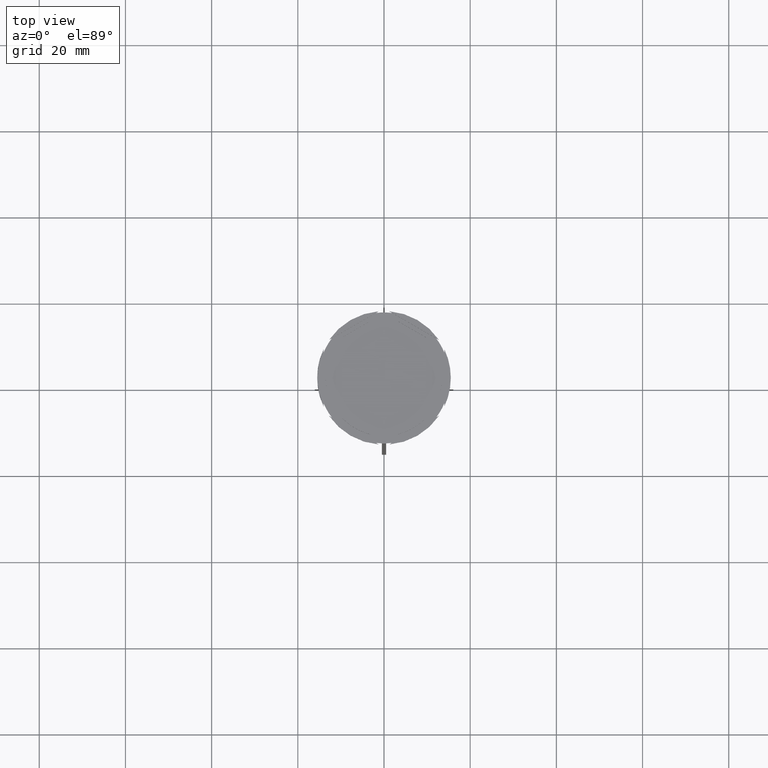
[diagram: clean part render]
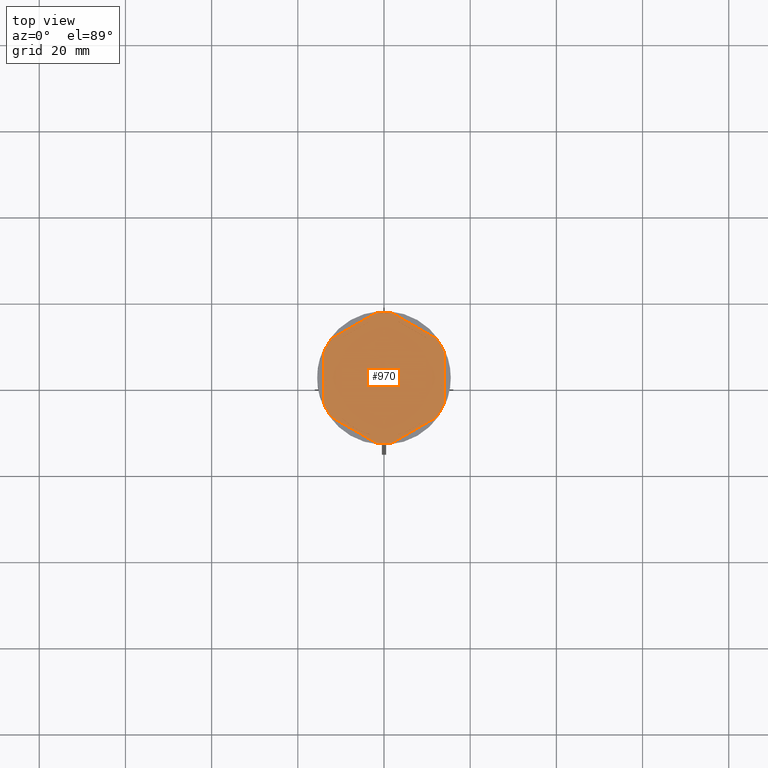
[diagram: same view with one face highlighted and labeled with its STEP entity id]
A machine part, top view. The second image highlights one B-rep face of the part: STEP entity #970.
In plain terms, the highlighted planar face has unit normal (0, 0, 1).
Its self-contained STEP definition (entity closure, byte-faithful):
#29 = EDGE_LOOP ( 'NONE', ( #492, #1847, #1284, #129, #726, #205, #2705, #2769, #2357, #2422, #1553, #802 ) ) ;
#52 = VECTOR ( 'NONE', #834, 1000.000000000000000 ) ;
#57 = FACE_OUTER_BOUND ( 'NONE', #29, .T. ) ;
#71 = FACE_BOUND ( 'NONE', #1508, .T. ) ;
#96 = CARTESIAN_POINT ( 'NONE',  ( -13.00000000000000178, 7.505553499465134060, -1.000000000000000888 ) ) ;
#100 = CARTESIAN_POINT ( 'NONE',  ( 0.000000000000000000, 16.16580753730952225, -1.000000000000000000 ) ) ;
#105 = CARTESIAN_POINT ( 'NONE',  ( -14.00000000000000178, -8.082903768654762899, -1.000000000000000000 ) ) ;
#106 = AXIS2_PLACEMENT_3D ( 'NONE', #1413, #1191, #1862 ) ;
#129 = ORIENTED_EDGE ( 'NONE', *, *, #1136, .F. ) ;
#148 = VECTOR ( 'NONE', #1573, 1000.000000000000000 ) ;
#155 = CARTESIAN_POINT ( 'NONE',  ( 9.652380053229610013, 9.438302776877588229, -1.000000000000000888 ) ) ;
#196 = CARTESIAN_POINT ( 'NONE',  ( -9.652380053229617118, -9.438302776877577571, -1.000000000000000888 ) ) ;
#205 = ORIENTED_EDGE ( 'NONE', *, *, #541, .F. ) ;
#218 = CARTESIAN_POINT ( 'NONE',  ( 0.000000000000000000, 0.000000000000000000, -1.000000000000000000 ) ) ;
#221 = CARTESIAN_POINT ( 'NONE',  ( 12.12640224719051574, 9.164625935592399131, -1.000000000000000000 ) ) ;
#225 = CARTESIAN_POINT ( 'NONE',  ( 0.000000000000000000, 0.000000000000000000, -1.000000000000000000 ) ) ;
#228 = VECTOR ( 'NONE', #254, 1000.000000000000000 ) ;
#239 = VECTOR ( 'NONE', #2760, 1000.000000000000114 ) ;
#254 = DIRECTION ( 'NONE',  ( 0.000000000000000000, 1.000000000000000000, 0.000000000000000000 ) ) ;
#279 = CIRCLE ( 'NONE', #2664, 13.50000000000000000 ) ;
#287 = CIRCLE ( 'NONE', #1922, 15.19999999999999929 ) ;
#288 = CARTESIAN_POINT ( 'NONE',  ( -12.12640224719051751, 9.164625935592393802, -1.000000000000000000 ) ) ;
#293 = ORIENTED_EDGE ( 'NONE', *, *, #1335, .F. ) ;
#301 = EDGE_CURVE ( 'NONE', #2173, #1148, #1069, .T. ) ;
#316 = DIRECTION ( 'NONE',  ( -0.000000000000000000, -0.000000000000000000, -1.000000000000000000 ) ) ;
#329 = ORIENTED_EDGE ( 'NONE', *, *, #988, .F. ) ;
#336 = DIRECTION ( 'NONE',  ( 0.8660254037844385966, 0.5000000000000000000, 0.000000000000000000 ) ) ;
#370 = AXIS2_PLACEMENT_3D ( 'NONE', #812, #1493, #2027 ) ;
#373 = VERTEX_POINT ( 'NONE', #876 ) ;
#380 = AXIS2_PLACEMENT_3D ( 'NONE', #1511, #2568, #1478 ) ;
#405 = VERTEX_POINT ( 'NONE', #700 ) ;
#414 = CARTESIAN_POINT ( 'NONE',  ( 9.652380053229613566, -9.438302776877582900, -1.000000000000000888 ) ) ;
#425 = VECTOR ( 'NONE', #457, 1000.000000000000000 ) ;
#435 = CARTESIAN_POINT ( 'NONE',  ( -12.12640224719051218, -9.164625935592404460, -1.000000000000000000 ) ) ;
#449 = EDGE_CURVE ( 'NONE', #731, #1148, #776, .T. ) ;
#457 = DIRECTION ( 'NONE',  ( -0.8660254037844385966, 0.5000000000000001110, 0.000000000000000000 ) ) ;
#466 = VECTOR ( 'NONE', #994, 1000.000000000000114 ) ;
#484 = ORIENTED_EDGE ( 'NONE', *, *, #2343, .F. ) ;
#492 = ORIENTED_EDGE ( 'NONE', *, *, #2659, .T. ) ;
#496 = EDGE_CURVE ( 'NONE', #2173, #581, #2506, .T. ) ;
#498 = CARTESIAN_POINT ( 'NONE',  ( 14.00000000000000000, -5.919459434779497542, -1.000000000000000000 ) ) ;
#506 = CARTESIAN_POINT ( 'NONE',  ( -13.00000000000000178, 3.640054944640251033, -1.000000000000000888 ) ) ;
#524 = EDGE_CURVE ( 'NONE', #1975, #2458, #279, .T. ) ;
#540 = VERTEX_POINT ( 'NONE', #506 ) ;
#541 = EDGE_CURVE ( 'NONE', #1102, #957, #1962, .T. ) ;
#551 = DIRECTION ( 'NONE',  ( 0.000000000000000000, 0.000000000000000000, 1.000000000000000000 ) ) ;
#555 = AXIS2_PLACEMENT_3D ( 'NONE', #225, #2018, #1117 ) ;
#562 = CIRCLE ( 'NONE', #1025, 13.50000000000000000 ) ;
#581 = VERTEX_POINT ( 'NONE', #1467 ) ;
#613 = ORIENTED_EDGE ( 'NONE', *, *, #1296, .F. ) ;
#636 = ORIENTED_EDGE ( 'NONE', *, *, #524, .F. ) ;
#646 = CARTESIAN_POINT ( 'NONE',  ( 13.00000000000000178, 3.640054944640248369, -1.000000000000000888 ) ) ;
#651 = CARTESIAN_POINT ( 'NONE',  ( -13.00000000000000178, -7.505553499465134060, -1.000000000000000888 ) ) ;
#693 = DIRECTION ( 'NONE',  ( 0.8660254037844385966, 0.5000000000000001110, -0.000000000000000000 ) ) ;
#700 = CARTESIAN_POINT ( 'NONE',  ( -13.00000000000000178, -3.640054944640251033, -1.000000000000000888 ) ) ;
#704 = AXIS2_PLACEMENT_3D ( 'NONE', #1180, #2076, #1851 ) ;
#717 = VERTEX_POINT ( 'NONE', #221 ) ;
#726 = ORIENTED_EDGE ( 'NONE', *, *, #953, .T. ) ;
#731 = VERTEX_POINT ( 'NONE', #435 ) ;
#738 = CARTESIAN_POINT ( 'NONE',  ( 14.00000000000000000, 5.919459434779493989, -1.000000000000000000 ) ) ;
#754 = DIRECTION ( 'NONE',  ( 0.000000000000000000, 0.000000000000000000, 1.000000000000000000 ) ) ;
#776 = LINE ( 'NONE', #105, #466 ) ;
#786 = EDGE_CURVE ( 'NONE', #1699, #1784, #2263, .T. ) ;
#792 = DIRECTION ( 'NONE',  ( 1.073081856240827950E-16, 1.000000000000000000, 0.000000000000000000 ) ) ;
#801 = AXIS2_PLACEMENT_3D ( 'NONE', #1510, #2437, #2216 ) ;
#802 = ORIENTED_EDGE ( 'NONE', *, *, #2293, .F. ) ;
#812 = CARTESIAN_POINT ( 'NONE',  ( 0.000000000000000000, 0.000000000000000000, -1.000000000000000000 ) ) ;
#834 = DIRECTION ( 'NONE',  ( -0.8660254037844387076, -0.4999999999999999445, 0.000000000000000000 ) ) ;
#865 = CARTESIAN_POINT ( 'NONE',  ( 0.000000000000000000, 0.000000000000000000, -1.000000000000000000 ) ) ;
#876 = CARTESIAN_POINT ( 'NONE',  ( -3.347619946770386434, 13.07835772151782905, -1.000000000000000888 ) ) ;
#882 = LINE ( 'NONE', #96, #228 ) ;
#912 = VERTEX_POINT ( 'NONE', #1412 ) ;
#953 = EDGE_CURVE ( 'NONE', #2157, #957, #1380, .T. ) ;
#957 = VERTEX_POINT ( 'NONE', #288 ) ;
#970 = ADVANCED_FACE ( 'NONE', ( #991, #71, #1144, #1649, #2054, #2074, #57 ), #1848, .T. ) ;
#976 = CARTESIAN_POINT ( 'NONE',  ( 0.000000000000000000, 0.000000000000000000, -1.000000000000000000 ) ) ;
#988 = EDGE_CURVE ( 'NONE', #2458, #1975, #1054, .T. ) ;
#991 = FACE_BOUND ( 'NONE', #1571, .T. ) ;
#994 = DIRECTION ( 'NONE',  ( 0.8660254037844388186, -0.4999999999999997780, 0.000000000000000000 ) ) ;
#1025 = AXIS2_PLACEMENT_3D ( 'NONE', #2589, #2094, #1909 ) ;
#1026 = DIRECTION ( 'NONE',  ( -0.8660254037844387076, 0.4999999999999997780, 0.000000000000000000 ) ) ;
#1046 = ORIENTED_EDGE ( 'NONE', *, *, #2469, .F. ) ;
#1054 = LINE ( 'NONE', #2375, #52 ) ;
#1069 = CIRCLE ( 'NONE', #555, 15.19999999999999929 ) ;
#1099 = ORIENTED_EDGE ( 'NONE', *, *, #1130, .F. ) ;
#1102 = VERTEX_POINT ( 'NONE', #1215 ) ;
#1117 = DIRECTION ( 'NONE',  ( 1.000000000000000000, 0.000000000000000000, 0.000000000000000000 ) ) ;
#1130 = EDGE_CURVE ( 'NONE', #373, #1696, #2538, .T. ) ;
#1135 = VERTEX_POINT ( 'NONE', #2420 ) ;
#1136 = EDGE_CURVE ( 'NONE', #2157, #912, #287, .T. ) ;
#1144 = FACE_BOUND ( 'NONE', #1466, .T. ) ;
#1148 = VERTEX_POINT ( 'NONE', #1800 ) ;
#1180 = CARTESIAN_POINT ( 'NONE',  ( 0.000000000000000000, 0.000000000000000000, -1.000000000000000000 ) ) ;
#1191 = DIRECTION ( 'NONE',  ( -0.000000000000000000, -0.000000000000000000, -1.000000000000000000 ) ) ;
#1197 = VERTEX_POINT ( 'NONE', #196 ) ;
#1199 = DIRECTION ( 'NONE',  ( 1.000000000000000000, -9.769962616701377556E-15, 0.000000000000000000 ) ) ;
#1211 = VECTOR ( 'NONE', #1026, 1000.000000000000114 ) ;
#1215 = CARTESIAN_POINT ( 'NONE',  ( -14.00000000000000178, 5.919459434779493989, -1.000000000000000000 ) ) ;
#1226 = ORIENTED_EDGE ( 'NONE', *, *, #1910, .F. ) ;
#1253 = VECTOR ( 'NONE', #336, 1000.000000000000227 ) ;
#1260 = CIRCLE ( 'NONE', #1486, 13.50000000000000000 ) ;
#1263 = CARTESIAN_POINT ( 'NONE',  ( 3.347619946770387322, -13.07835772151783083, -1.000000000000000888 ) ) ;
#1269 = EDGE_CURVE ( 'NONE', #1784, #1699, #1682, .T. ) ;
#1274 = CARTESIAN_POINT ( 'NONE',  ( 14.00000000000000178, 8.082903768654762899, -1.000000000000000000 ) ) ;
#1284 = ORIENTED_EDGE ( 'NONE', *, *, #2310, .T. ) ;
#1296 = EDGE_CURVE ( 'NONE', #405, #540, #882, .T. ) ;
#1310 = CIRCLE ( 'NONE', #380, 13.50000000000000000 ) ;
#1314 = VERTEX_POINT ( 'NONE', #2709 ) ;
#1330 = EDGE_CURVE ( 'NONE', #2674, #1314, #1260, .T. ) ;
#1331 = VERTEX_POINT ( 'NONE', #1365 ) ;
#1335 = EDGE_CURVE ( 'NONE', #1696, #373, #1388, .T. ) ;
#1337 = VERTEX_POINT ( 'NONE', #738 ) ;
#1359 = CARTESIAN_POINT ( 'NONE',  ( 13.00000000000000178, -3.640054944640254142, -1.000000000000000888 ) ) ;
#1365 = CARTESIAN_POINT ( 'NONE',  ( -14.00000000000000178, -5.919459434779493989, -1.000000000000000000 ) ) ;
#1377 = CARTESIAN_POINT ( 'NONE',  ( -3.347619946770386434, -13.07835772151782905, -1.000000000000000888 ) ) ;
#1380 = LINE ( 'NONE', #100, #239 ) ;
#1381 = CARTESIAN_POINT ( 'NONE',  ( -1.873597752809482486, 15.08408537037188957, -1.000000000000000000 ) ) ;
#1388 = LINE ( 'NONE', #2050, #2064 ) ;
#1394 = CARTESIAN_POINT ( 'NONE',  ( 1.873597752809482486, -15.08408537037188779, -1.000000000000000000 ) ) ;
#1412 = CARTESIAN_POINT ( 'NONE',  ( 1.873597752809481598, 15.08408537037189134, -1.000000000000000000 ) ) ;
#1413 = CARTESIAN_POINT ( 'NONE',  ( 0.000000000000000000, 0.000000000000000000, -1.000000000000000000 ) ) ;
#1425 = CARTESIAN_POINT ( 'NONE',  ( 0.000000000000000000, 0.000000000000000000, -1.000000000000000000 ) ) ;
#1466 = EDGE_LOOP ( 'NONE', ( #636, #329 ) ) ;
#1467 = CARTESIAN_POINT ( 'NONE',  ( 12.12640224719051751, -9.164625935592392025, -1.000000000000000000 ) ) ;
#1478 = DIRECTION ( 'NONE',  ( 1.000000000000000000, 0.000000000000000000, 0.000000000000000000 ) ) ;
#1486 = AXIS2_PLACEMENT_3D ( 'NONE', #1601, #754, #2741 ) ;
#1493 = DIRECTION ( 'NONE',  ( 0.000000000000000000, 0.000000000000000000, 1.000000000000000000 ) ) ;
#1495 = LINE ( 'NONE', #1274, #1211 ) ;
#1508 = EDGE_LOOP ( 'NONE', ( #2265, #2336 ) ) ;
#1510 = CARTESIAN_POINT ( 'NONE',  ( 0.000000000000000000, 0.000000000000000000, -1.000000000000000000 ) ) ;
#1511 = CARTESIAN_POINT ( 'NONE',  ( 0.000000000000000000, 0.000000000000000000, -1.000000000000000000 ) ) ;
#1512 = EDGE_LOOP ( 'NONE', ( #2237, #613, #484 ) ) ;
#1553 = ORIENTED_EDGE ( 'NONE', *, *, #496, .T. ) ;
#1571 = EDGE_LOOP ( 'NONE', ( #1948, #2639 ) ) ;
#1573 = DIRECTION ( 'NONE',  ( -2.311253228826398661E-16, -1.000000000000000000, 0.000000000000000000 ) ) ;
#1601 = CARTESIAN_POINT ( 'NONE',  ( 0.000000000000000000, 0.000000000000000000, -1.000000000000000000 ) ) ;
#1649 = FACE_BOUND ( 'NONE', #2542, .T. ) ;
#1661 = CARTESIAN_POINT ( 'NONE',  ( 1.740335835716699810E-15, -16.16580753730952225, -1.000000000000000000 ) ) ;
#1682 = CIRCLE ( 'NONE', #801, 13.50000000000000000 ) ;
#1696 = VERTEX_POINT ( 'NONE', #1749 ) ;
#1699 = VERTEX_POINT ( 'NONE', #646 ) ;
#1749 = CARTESIAN_POINT ( 'NONE',  ( -9.652380053229617118, 9.438302776877577571, -1.000000000000000888 ) ) ;
#1766 = DIRECTION ( 'NONE',  ( 1.000000000000000000, -5.329070518200752183E-15, 0.000000000000000000 ) ) ;
#1767 = LINE ( 'NONE', #651, #425 ) ;
#1770 = VERTEX_POINT ( 'NONE', #498 ) ;
#1784 = VERTEX_POINT ( 'NONE', #1359 ) ;
#1800 = CARTESIAN_POINT ( 'NONE',  ( -1.873597752809485151, -15.08408537037189312, -1.000000000000000000 ) ) ;
#1827 = AXIS2_PLACEMENT_3D ( 'NONE', #2160, #1966, #2586 ) ;
#1829 = AXIS2_PLACEMENT_3D ( 'NONE', #865, #2418, #2448 ) ;
#1847 = ORIENTED_EDGE ( 'NONE', *, *, #2594, .F. ) ;
#1848 = PLANE ( 'NONE',  #2848 ) ;
#1851 = DIRECTION ( 'NONE',  ( 1.000000000000000000, 0.000000000000000000, 0.000000000000000000 ) ) ;
#1859 = DIRECTION ( 'NONE',  ( 0.8660254037844387076, -0.5000000000000001110, 0.000000000000000000 ) ) ;
#1862 = DIRECTION ( 'NONE',  ( 1.000000000000000000, 0.000000000000000000, 0.000000000000000000 ) ) ;
#1878 = AXIS2_PLACEMENT_3D ( 'NONE', #2323, #316, #1199 ) ;
#1879 = LINE ( 'NONE', #2501, #1921 ) ;
#1890 = CARTESIAN_POINT ( 'NONE',  ( 14.00000000000000000, -8.082903768654761123, -1.000000000000000000 ) ) ;
#1909 = DIRECTION ( 'NONE',  ( 1.000000000000000000, 0.000000000000000000, 0.000000000000000000 ) ) ;
#1910 = EDGE_CURVE ( 'NONE', #1197, #2560, #562, .T. ) ;
#1921 = VECTOR ( 'NONE', #1859, 999.9999999999998863 ) ;
#1922 = AXIS2_PLACEMENT_3D ( 'NONE', #218, #2203, #1766 ) ;
#1935 = DIRECTION ( 'NONE',  ( 0.000000000000000000, -1.000000000000000000, 0.000000000000000000 ) ) ;
#1948 = ORIENTED_EDGE ( 'NONE', *, *, #1330, .F. ) ;
#1962 = CIRCLE ( 'NONE', #704, 15.19999999999999929 ) ;
#1966 = DIRECTION ( 'NONE',  ( -0.000000000000000000, -0.000000000000000000, -1.000000000000000000 ) ) ;
#1975 = VERTEX_POINT ( 'NONE', #1263 ) ;
#2014 = CARTESIAN_POINT ( 'NONE',  ( 13.00000000000000000, -7.505553499465137612, -1.000000000000000888 ) ) ;
#2018 = DIRECTION ( 'NONE',  ( -0.000000000000000000, -0.000000000000000000, -1.000000000000000000 ) ) ;
#2019 = VECTOR ( 'NONE', #1935, 1000.000000000000000 ) ;
#2027 = DIRECTION ( 'NONE',  ( 1.000000000000000000, 0.000000000000000000, 0.000000000000000000 ) ) ;
#2050 = CARTESIAN_POINT ( 'NONE',  ( 0.000000000000000000, 15.01110699893027167, -1.000000000000000888 ) ) ;
#2053 = EDGE_LOOP ( 'NONE', ( #1099, #293 ) ) ;
#2054 = FACE_BOUND ( 'NONE', #1512, .T. ) ;
#2064 = VECTOR ( 'NONE', #693, 1000.000000000000000 ) ;
#2074 = FACE_BOUND ( 'NONE', #2053, .T. ) ;
#2076 = DIRECTION ( 'NONE',  ( -0.000000000000000000, -0.000000000000000000, -1.000000000000000000 ) ) ;
#2094 = DIRECTION ( 'NONE',  ( 0.000000000000000000, 0.000000000000000000, 1.000000000000000000 ) ) ;
#2104 = DIRECTION ( 'NONE',  ( 1.000000000000000000, 0.000000000000000000, 0.000000000000000000 ) ) ;
#2110 = CIRCLE ( 'NONE', #1827, 15.19999999999999929 ) ;
#2157 = VERTEX_POINT ( 'NONE', #1381 ) ;
#2158 = CIRCLE ( 'NONE', #1878, 15.19999999999999929 ) ;
#2160 = CARTESIAN_POINT ( 'NONE',  ( 0.000000000000000000, 0.000000000000000000, -1.000000000000000000 ) ) ;
#2171 = DIRECTION ( 'NONE',  ( 0.000000000000000000, 0.000000000000000000, 1.000000000000000000 ) ) ;
#2173 = VERTEX_POINT ( 'NONE', #1394 ) ;
#2203 = DIRECTION ( 'NONE',  ( -0.000000000000000000, -0.000000000000000000, -1.000000000000000000 ) ) ;
#2216 = DIRECTION ( 'NONE',  ( 1.000000000000000000, 0.000000000000000000, 0.000000000000000000 ) ) ;
#2219 = EDGE_CURVE ( 'NONE', #731, #1331, #2809, .T. ) ;
#2237 = ORIENTED_EDGE ( 'NONE', *, *, #2853, .F. ) ;
#2263 = LINE ( 'NONE', #2014, #148 ) ;
#2265 = ORIENTED_EDGE ( 'NONE', *, *, #1269, .F. ) ;
#2293 = EDGE_CURVE ( 'NONE', #1770, #581, #2110, .T. ) ;
#2303 = CIRCLE ( 'NONE', #1829, 13.50000000000000000 ) ;
#2310 = EDGE_CURVE ( 'NONE', #717, #912, #1495, .T. ) ;
#2323 = CARTESIAN_POINT ( 'NONE',  ( 0.000000000000000000, 0.000000000000000000, -1.000000000000000000 ) ) ;
#2336 = ORIENTED_EDGE ( 'NONE', *, *, #786, .F. ) ;
#2343 = EDGE_CURVE ( 'NONE', #1135, #405, #1310, .T. ) ;
#2351 = LINE ( 'NONE', #2824, #2019 ) ;
#2357 = ORIENTED_EDGE ( 'NONE', *, *, #449, .T. ) ;
#2372 = LINE ( 'NONE', #1890, #2851 ) ;
#2375 = CARTESIAN_POINT ( 'NONE',  ( -8.673617379884035472E-16, -15.01110699893027167, -1.000000000000000888 ) ) ;
#2418 = DIRECTION ( 'NONE',  ( 0.000000000000000000, 0.000000000000000000, 1.000000000000000000 ) ) ;
#2420 = CARTESIAN_POINT ( 'NONE',  ( -13.50000000000000000, 0.000000000000000000, -1.000000000000000000 ) ) ;
#2422 = ORIENTED_EDGE ( 'NONE', *, *, #301, .F. ) ;
#2437 = DIRECTION ( 'NONE',  ( 0.000000000000000000, 0.000000000000000000, 1.000000000000000000 ) ) ;
#2448 = DIRECTION ( 'NONE',  ( 1.000000000000000000, 0.000000000000000000, 0.000000000000000000 ) ) ;
#2458 = VERTEX_POINT ( 'NONE', #414 ) ;
#2469 = EDGE_CURVE ( 'NONE', #2560, #1197, #1767, .T. ) ;
#2501 = CARTESIAN_POINT ( 'NONE',  ( 13.00000000000000355, 7.505553499465135836, -1.000000000000000888 ) ) ;
#2506 = LINE ( 'NONE', #1661, #1253 ) ;
#2538 = CIRCLE ( 'NONE', #370, 13.50000000000000000 ) ;
#2542 = EDGE_LOOP ( 'NONE', ( #1226, #1046 ) ) ;
#2560 = VERTEX_POINT ( 'NONE', #1377 ) ;
#2562 = EDGE_CURVE ( 'NONE', #1314, #2674, #1879, .T. ) ;
#2568 = DIRECTION ( 'NONE',  ( 0.000000000000000000, 0.000000000000000000, 1.000000000000000000 ) ) ;
#2586 = DIRECTION ( 'NONE',  ( 1.000000000000000000, 0.000000000000000000, 0.000000000000000000 ) ) ;
#2589 = CARTESIAN_POINT ( 'NONE',  ( 0.000000000000000000, 0.000000000000000000, -1.000000000000000000 ) ) ;
#2594 = EDGE_CURVE ( 'NONE', #717, #1337, #2158, .T. ) ;
#2639 = ORIENTED_EDGE ( 'NONE', *, *, #2562, .F. ) ;
#2659 = EDGE_CURVE ( 'NONE', #1770, #1337, #2372, .T. ) ;
#2664 = AXIS2_PLACEMENT_3D ( 'NONE', #976, #551, #2104 ) ;
#2674 = VERTEX_POINT ( 'NONE', #155 ) ;
#2701 = EDGE_CURVE ( 'NONE', #1102, #1331, #2351, .T. ) ;
#2705 = ORIENTED_EDGE ( 'NONE', *, *, #2701, .T. ) ;
#2709 = CARTESIAN_POINT ( 'NONE',  ( 3.347619946770397537, 13.07835772151782905, -1.000000000000000888 ) ) ;
#2741 = DIRECTION ( 'NONE',  ( 1.000000000000000000, 0.000000000000000000, 0.000000000000000000 ) ) ;
#2760 = DIRECTION ( 'NONE',  ( -0.8660254037844385966, -0.4999999999999999445, 0.000000000000000000 ) ) ;
#2769 = ORIENTED_EDGE ( 'NONE', *, *, #2219, .F. ) ;
#2809 = CIRCLE ( 'NONE', #106, 15.19999999999999929 ) ;
#2824 = CARTESIAN_POINT ( 'NONE',  ( -14.00000000000000178, 8.082903768654759347, -1.000000000000000000 ) ) ;
#2838 = DIRECTION ( 'NONE',  ( 1.000000000000000000, 0.000000000000000000, -0.000000000000000000 ) ) ;
#2848 = AXIS2_PLACEMENT_3D ( 'NONE', #1425, #2171, #2838 ) ;
#2851 = VECTOR ( 'NONE', #792, 1000.000000000000000 ) ;
#2853 = EDGE_CURVE ( 'NONE', #540, #1135, #2303, .T. ) ;